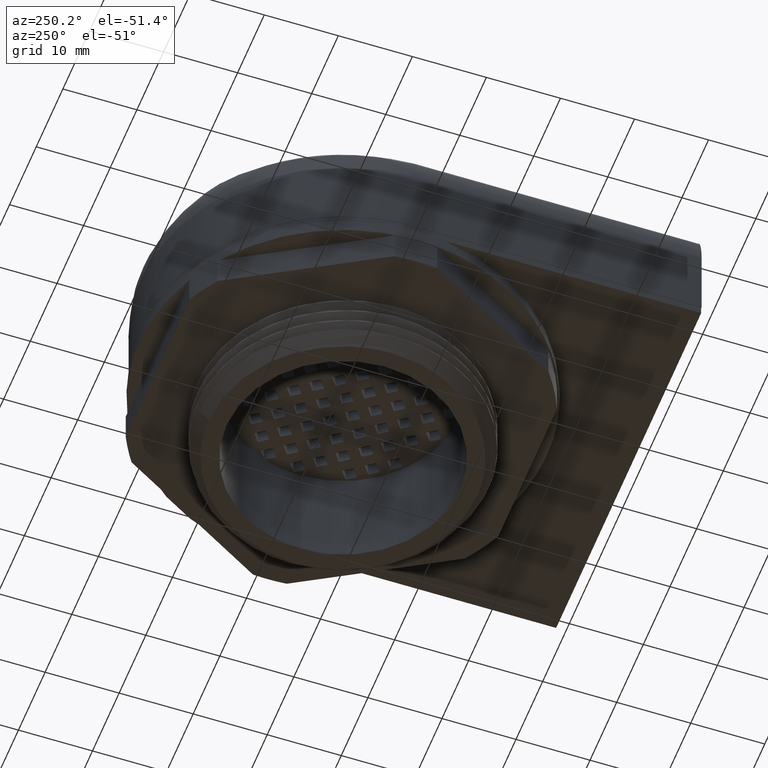
[diagram: clean part render]
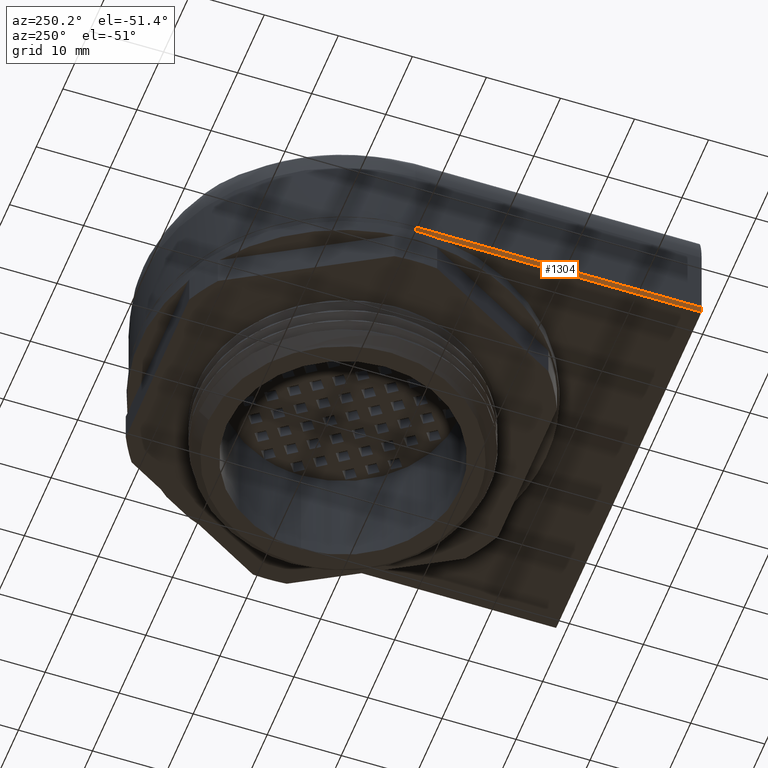
[diagram: same view with one face highlighted and labeled with its STEP entity id]
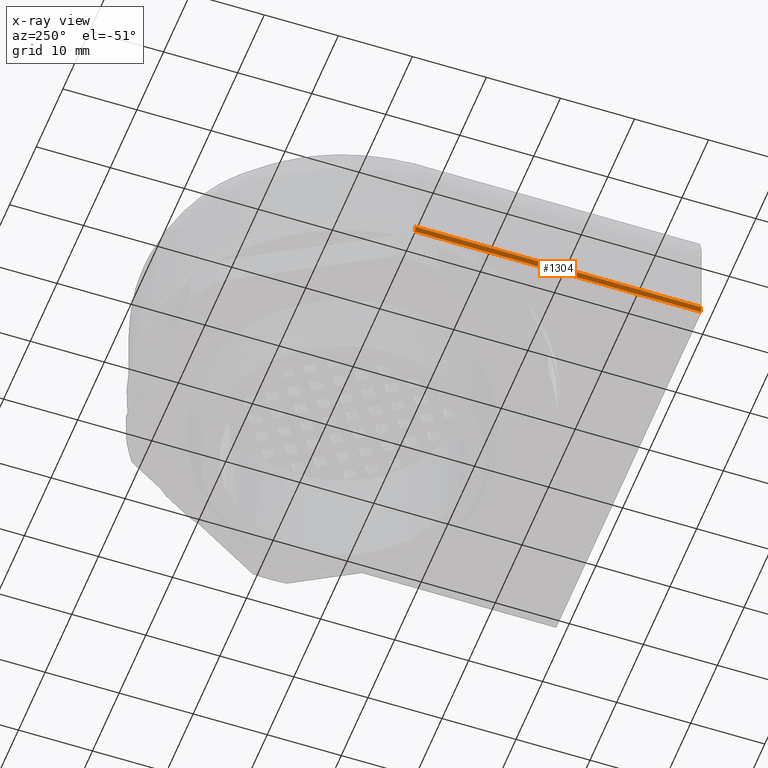
[diagram: x-ray of the same camera — body ghosted, the highlighted face saturated]
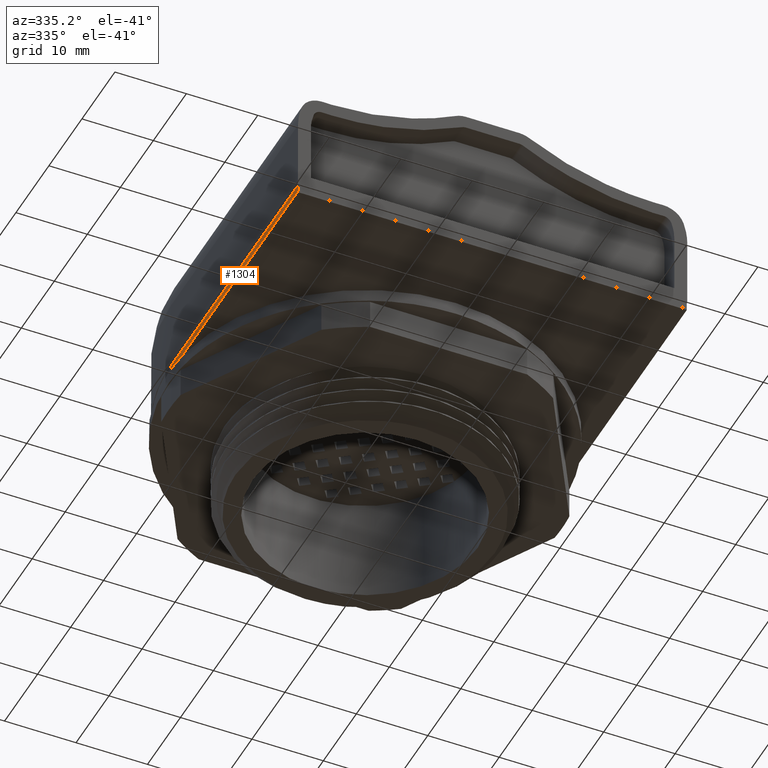
[diagram: same view with one face highlighted and labeled with its STEP entity id]
A machine part, auxiliary view. The second image highlights one B-rep face of the part: STEP entity #1304.
The next image is the same camera in x-ray: the body ghosted, the highlighted face saturated — about 0% of this face is hidden behind the body in this view.
A second angle (auxiliary view) of the same face is appended — the face is thin or edge-on in the first view.
In plain terms, the highlighted planar face has unit normal (1, -0, 0).
Its self-contained STEP definition (entity closure, byte-faithful):
#620 = VERTEX_POINT ( 'NONE', #2908 ) ;
#652 = VERTEX_POINT ( 'NONE', #2966 ) ;
#654 = VERTEX_POINT ( 'NONE', #2926 ) ;
#675 = VERTEX_POINT ( 'NONE', #2935 ) ;
#689 = VERTEX_POINT ( 'NONE', #3031 ) ;
#902 = EDGE_CURVE ( 'NONE', #689, #652, #12913, .T. ) ;
#905 = EDGE_CURVE ( 'NONE', #675, #620, #12895, .T. ) ;
#910 = EDGE_CURVE ( 'NONE', #675, #654, #4611, .T. ) ;
#914 = EDGE_CURVE ( 'NONE', #620, #689, #12924, .T. ) ;
#1304 = ADVANCED_FACE ( 'NONE', ( #6739 ), #6705, .F. ) ;
#1424 = EDGE_CURVE ( 'NONE', #654, #652, #7496, .T. ) ;
#2908 = CARTESIAN_POINT ( 'NONE',  ( -31.77038697033279700, -23.47637944974749400, 13.99999999999999800 ) ) ;
#2926 = CARTESIAN_POINT ( 'NONE',  ( -31.76988697033278400, 5.810299003322279900, 15.00000000000000000 ) ) ;
#2935 = CARTESIAN_POINT ( 'NONE',  ( -31.77038697033278300, 5.810299003322279900, 13.99999999999999800 ) ) ;
#2966 = CARTESIAN_POINT ( 'NONE',  ( -31.76988697033279900, -32.77070099667773200, 15.00000000000000000 ) ) ;
#3031 = CARTESIAN_POINT ( 'NONE',  ( -31.77038697033281200, -32.77120099667773400, 13.99999999999999800 ) ) ;
#4512 = CARTESIAN_POINT ( 'NONE',  ( -31.76988697033279200, -3.951927147700979000, 13.99999999999999800 ) ) ;
#4513 = CARTESIAN_POINT ( 'NONE',  ( -31.76988697033280600, -13.71415329872423800, 13.99999999999999800 ) ) ;
#4514 = CARTESIAN_POINT ( 'NONE',  ( -31.77038697033279700, -23.47637944974749400, 13.99999999999999800 ) ) ;
#4517 = CARTESIAN_POINT ( 'NONE',  ( -31.76988697033280600, -32.77070099667773200, 14.66666666666666600 ) ) ;
#4519 = CARTESIAN_POINT ( 'NONE',  ( -31.77038697033278300, 5.810299003322279900, 13.99999999999999800 ) ) ;
#4522 = CARTESIAN_POINT ( 'NONE',  ( -31.77038697033281200, -32.77120099667773400, 13.99999999999999800 ) ) ;
#4528 = CARTESIAN_POINT ( 'NONE',  ( -31.76988697033280600, -32.77070099667773200, 14.33333333333333200 ) ) ;
#4554 = CARTESIAN_POINT ( 'NONE',  ( -31.76988697033279900, -32.77070099667773200, 15.00000000000000000 ) ) ;
#4565 = CARTESIAN_POINT ( 'NONE',  ( -31.76988697033278400, 5.810299003322281700, 13.99999999999999800 ) ) ;
#4571 = DIRECTION ( 'NONE',  ( 0.0000000000000000000, 0.0000000000000000000, 1.000000000000000000 ) ) ;
#4611 = LINE ( 'NONE', #4565, #5576 ) ;
#4623 = CARTESIAN_POINT ( 'NONE',  ( -31.77038697033279700, -23.47637944974749400, 13.99999999999999800 ) ) ;
#4648 = CARTESIAN_POINT ( 'NONE',  ( -31.76988697033280600, -26.57465329872424000, 13.99999999999999800 ) ) ;
#4661 = CARTESIAN_POINT ( 'NONE',  ( -31.76988697033280600, -29.67292714770098900, 13.99999999999999800 ) ) ;
#4669 = CARTESIAN_POINT ( 'NONE',  ( -31.77038697033281200, -32.77120099667773400, 13.99999999999999800 ) ) ;
#5576 = VECTOR ( 'NONE', #4571, 1000.000000000000000 ) ;
#6705 = PLANE ( 'NONE',  #15904 ) ;
#6715 = DIRECTION ( 'NONE',  ( 3.246266153874726300E-016, 1.000000000000000000, 0.0000000000000000000 ) ) ;
#6739 = FACE_OUTER_BOUND ( 'NONE', #13803, .T. ) ;
#6742 = CARTESIAN_POINT ( 'NONE',  ( -31.76988697033280600, -32.81970099667773200, 13.99999999999999800 ) ) ;
#6754 = DIRECTION ( 'NONE',  ( 1.000000000000000000, -3.246266153874726300E-016, 0.0000000000000000000 ) ) ;
#7496 = LINE ( 'NONE', #7513, #16068 ) ;
#7507 = DIRECTION ( 'NONE',  ( -3.246266153874726300E-016, -1.000000000000000000, -0.0000000000000000000 ) ) ;
#7513 = CARTESIAN_POINT ( 'NONE',  ( -31.76988697033280600, -32.81970099667773200, 15.00000000000000000 ) ) ;
#12895 = B_SPLINE_CURVE_WITH_KNOTS ( 'NONE', 3,
 ( #4519, #4512, #4513, #4514 ),
 .UNSPECIFIED., .F., .F.,
 ( 4, 4 ),
 ( 0.0000000000000000000, 0.6858465967956574000 ),
 .UNSPECIFIED. ) ;
#12913 = B_SPLINE_CURVE_WITH_KNOTS ( 'NONE', 3,
 ( #4522, #4528, #4517, #4554 ),
 .UNSPECIFIED., .F., .F.,
 ( 4, 4 ),
 ( 0.0000000000000000000, 1.000000000000000000 ),
 .UNSPECIFIED. ) ;
#12924 = B_SPLINE_CURVE_WITH_KNOTS ( 'NONE', 3,
 ( #4623, #4648, #4661, #4669 ),
 .UNSPECIFIED., .F., .F.,
 ( 4, 4 ),
 ( 0.7823303268753969400, 1.000000000000000000 ),
 .UNSPECIFIED. ) ;
#13803 = EDGE_LOOP ( 'NONE', ( #14502, #14492, #14454, #14515, #14461 ) ) ;
#14454 = ORIENTED_EDGE ( 'NONE', *, *, #910, .F. ) ;
#14461 = ORIENTED_EDGE ( 'NONE', *, *, #914, .T. ) ;
#14492 = ORIENTED_EDGE ( 'NONE', *, *, #1424, .F. ) ;
#14502 = ORIENTED_EDGE ( 'NONE', *, *, #902, .T. ) ;
#14515 = ORIENTED_EDGE ( 'NONE', *, *, #905, .T. ) ;
#15904 = AXIS2_PLACEMENT_3D ( 'NONE', #6742, #6754, #6715 ) ;
#16068 = VECTOR ( 'NONE', #7507, 1000.000000000000000 ) ;